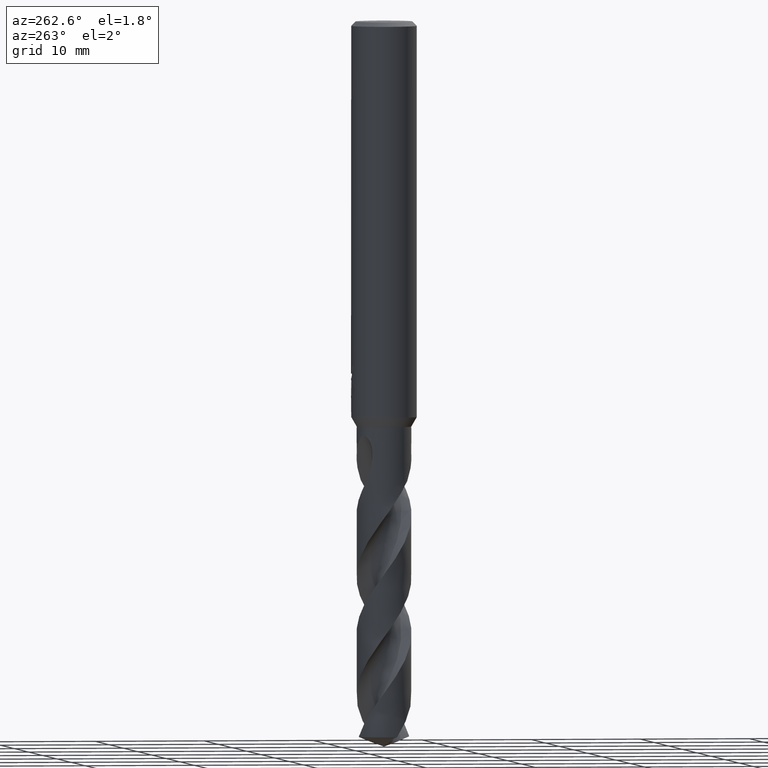
[diagram: clean part render]
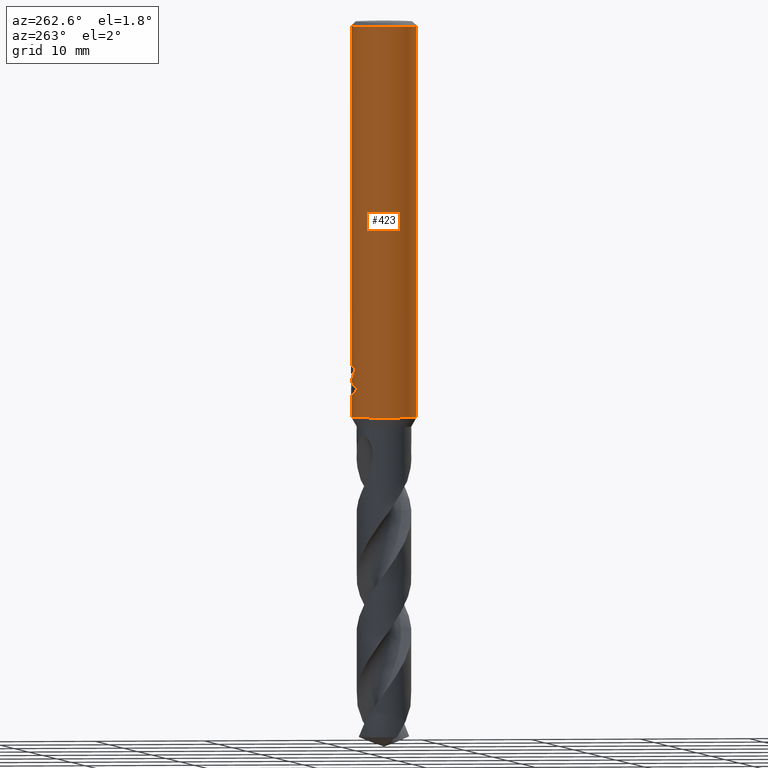
[diagram: same view with one face highlighted and labeled with its STEP entity id]
A machine part, auxiliary view. The second image highlights one B-rep face of the part: STEP entity #423.
In plain terms, the highlighted cylindrical surface (edge-blend (fillet) strip) has radius 3 mm, axis along (-0, -0, 1).
Its self-contained STEP definition (entity closure, byte-faithful):
#293=EDGE_CURVE('',#301,#479,#786,.T.);
#301=VERTEX_POINT('',#795);
#313=EDGE_CURVE('',#449,#327,#807,.T.);
#327=VERTEX_POINT('',#822);
#377=VERTEX_POINT('',#879);
#385=EDGE_CURVE('',#449,#401,#888,.T.);
#393=VERTEX_POINT('',#897);
#401=VERTEX_POINT('',#906);
#409=VERTEX_POINT('',#914);
#417=VERTEX_POINT('',#923);
#423=ADVANCED_FACE('',(#929),#930,.T.);
#449=VERTEX_POINT('',#958);
#463=EDGE_CURVE('',#377,#301,#974,.T.);
#479=VERTEX_POINT('',#992);
#483=EDGE_CURVE('',#703,#409,#996,.T.);
#539=EDGE_CURVE('',#479,#703,#1056,.T.);
#557=VERTEX_POINT('',#1075);
#575=EDGE_CURVE('',#417,#393,#1095,.T.);
#581=EDGE_CURVE('',#667,#557,#1103,.T.);
#609=EDGE_CURVE('',#401,#377,#1134,.T.);
#667=VERTEX_POINT('',#1197);
#691=EDGE_CURVE('',#557,#327,#1223,.T.);
#703=VERTEX_POINT('',#1235);
#707=EDGE_CURVE('',#409,#417,#1239,.T.);
#711=EDGE_CURVE('',#393,#667,#1243,.T.);
#786=B_SPLINE_CURVE_WITH_KNOTS('',3,(#1593,#1594,#1595,#1596,#1597,#1598,#1599,#1600,#1601,#1602,#1603,#1604,#1605,#1606,#1607,#1608,#1609,#1610,#1611,#1612,#1613,#1614,#1615,#1616,#1617,#1618,#1619),.UNSPECIFIED.,.F.,.F.,(4,2,3,2,2,2,2,2,2,2,2,2,4),(-0.54422824842136,-0.27211412421068,0.0,0.272114124210678,0.544228248421357,0.817906359646673,1.09158447087199,1.36255924571499,1.63353402055798,1.90530456554772,2.17707511053746,2.4488456555272,2.72061620051693),.UNSPECIFIED.);
#795=CARTESIAN_POINT('',(-1.20768269592175E-015,3.0,-32.0232688117743));
#807=CIRCLE('',#1668,3.0);
#822=CARTESIAN_POINT('',(0.0,3.0,-36.0));
#879=CARTESIAN_POINT('',(0.0,3.0,-0.399999999999999));
#888=LINE('',#2357,#2358);
#897=CARTESIAN_POINT('',(-3.67366600472444E-016,3.0,-32.7128911336578));
#906=CARTESIAN_POINT('',(3.67381906146713E-016,-3.0,-0.399999999999999));
#914=CARTESIAN_POINT('',(-1.0350734039088,2.81578107254819,-31.3171221986971));
#923=CARTESIAN_POINT('',(-2.06254272401587E-016,3.0,-32.5000801551881));
#929=FACE_OUTER_BOUND('',#2527,.T.);
#930=CYLINDRICAL_SURFACE('',#2528,3.0);
#958=CARTESIAN_POINT('',(3.67381906146713E-016,-3.0,-36.0));
#974=LINE('',#2694,#2695);
#992=CARTESIAN_POINT('',(-0.486378944383045,2.96031003823262,-31.6432837483006));
#996=CIRCLE('',#2723,3.0);
#1056=B_SPLINE_CURVE_WITH_KNOTS('',3,(#3000,#3001,#3002,#3003,#3004,#3005,#3006,#3007,#3008,#3009,#3010,#3011,#3012,#3013,#3014,#3015,#3016,#3017,#3018,#3019,#3020,#3021,#3022,#3023,#3024,#3025,#3026),.UNSPECIFIED.,.F.,.F.,(4,2,3,2,2,2,2,2,2,2,2,2,4),(-0.54422824842136,-0.27211412421068,0.0,0.272114124210678,0.544228248421357,0.817906359646673,1.09158447087199,1.36255924571499,1.63353402055798,1.90530456554772,2.17707511053746,2.4488456555272,2.72061620051693),.UNSPECIFIED.);
#1075=CARTESIAN_POINT('',(-2.46407913303377E-016,3.0,-34.0310253601033));
#1095=LINE('',#3098,#3099);
#1103=B_SPLINE_CURVE_WITH_KNOTS('',3,(#3713,#3714,#3715,#3716,#3717,#3718,#3719,#3720,#3721,#3722,#3723,#3724,#3725,#3726,#3727,#3728),.UNSPECIFIED.,.F.,.F.,(4,2,2,2,2,2,2,4),(5.66023402257373,6.29060333517104,6.60504483258975,6.91948633000846,7.23392782742717,7.54836932484587,7.86141901111221,8.17446869737855),.UNSPECIFIED.);
#1134=CIRCLE('',#3870,3.0);
#1197=CARTESIAN_POINT('',(-1.337052752443,2.68557069115386,-33.3720803908795));
#1223=LINE('',#4894,#4895);
#1235=CARTESIAN_POINT('',(-0.562333990228013,2.94682549253162,-31.3171221986971));
#1239=B_SPLINE_CURVE_WITH_KNOTS('',3,(#5023,#5024,#5025,#5026,#5027,#5028,#5029,#5030,#5031,#5032,#5033,#5034,#5035,#5036),.UNSPECIFIED.,.F.,.F.,(4,2,2,2,2,2,4),(3.16026050654945,3.61086409539206,4.06146768423468,4.51207127307729,4.95991823802074,5.40776520296419,5.86282890530594),.UNSPECIFIED.);
#1243=ELLIPSE('',#5043,3.34478529612858,3.0);
#1593=CARTESIAN_POINT('',(0.665621182276714,2.92522622060321,-30.8140957881762));
#1594=CARTESIAN_POINT('',(0.728850563417096,2.91083867849353,-30.877518087557));
#1595=CARTESIAN_POINT('',(0.783900459387161,2.89602337967411,-30.9578702196133));
#1596=CARTESIAN_POINT('',(0.857188692916628,2.87518328740958,-31.1345580124299));
#1597=CARTESIAN_POINT('',(0.875400981188567,2.86943777108584,-31.2309373045166));
#1598=CARTESIAN_POINT('',(0.875400981188567,2.86943777108584,-31.3216420125868));
#1599=CARTESIAN_POINT('',(0.875400981188567,2.86943777108584,-31.412346720657));
#1600=CARTESIAN_POINT('',(0.857188692916629,2.87518328740958,-31.5087260127437));
#1601=CARTESIAN_POINT('',(0.783900459387161,2.89602337967411,-31.6854138055602));
#1602=CARTESIAN_POINT('',(0.728850563417096,2.91083867849353,-31.7657659376165));
#1603=CARTESIAN_POINT('',(0.60202838769231,2.93969645569731,-31.8929750586276));
#1604=CARTESIAN_POINT('',(0.5214778595293,2.95568533572518,-31.9483797636259));
#1605=CARTESIAN_POINT('',(0.34429909105015,2.98152194310932,-32.0221641076746));
#1606=CARTESIAN_POINT('',(0.247628172090375,2.99115403786358,-32.0405166027747));
#1607=CARTESIAN_POINT('',(0.0663244946631877,3.00062654348629,-32.0405166027747));
#1608=CARTESIAN_POINT('',(-0.0299285908853379,3.00115720326599,-32.0224875186921));
#1609=CARTESIAN_POINT('',(-0.206881310600538,2.99416773126077,-31.949244373347));
#1610=CARTESIAN_POINT('',(-0.287593937381961,2.98687212067831,-31.8940404490632));
#1611=CARTESIAN_POINT('',(-0.415200117492864,2.97182576996222,-31.7666805419979));
#1612=CARTESIAN_POINT('',(-0.470604049431396,2.96309385107775,-31.6859121102136));
#1613=CARTESIAN_POINT('',(-0.544183869965539,2.95046729924835,-31.5086992019516));
#1614=CARTESIAN_POINT('',(-0.562348199187247,2.94682278104247,-31.41223219425));
#1615=CARTESIAN_POINT('',(-0.562348199187247,2.94682278104247,-31.2310518309235));
#1616=CARTESIAN_POINT('',(-0.54418386996554,2.95046729924835,-31.134584823222));
#1617=CARTESIAN_POINT('',(-0.4706040494314,2.96309385107775,-30.95737191496));
#1618=CARTESIAN_POINT('',(-0.415200117492863,2.97182576996222,-30.8766034831756));
#1619=CARTESIAN_POINT('',(-0.351303479704285,2.97935997575782,-30.812830162452));
#1668=AXIS2_PLACEMENT_3D('',#5213,#5214,#5215);
#2357=CARTESIAN_POINT('',(3.67381906146713E-016,-3.0,-18.2));
#2358=VECTOR('',#5332,1.0);
#2527=EDGE_LOOP('',(#5361,#5362,#5363,#5364,#5365,#5366,#5367,#5368,#5369,#5370,#5371,#5372));
#2528=AXIS2_PLACEMENT_3D('',#5373,#5374,#5375);
#2694=CARTESIAN_POINT('',(-3.67381906146713E-016,3.0,-18.2));
#2695=VECTOR('',#5424,1.0);
#2723=AXIS2_PLACEMENT_3D('',#5460,#5461,#5462);
#3000=CARTESIAN_POINT('',(0.665621182276714,2.92522622060321,-30.8140957881762));
#3001=CARTESIAN_POINT('',(0.728850563417096,2.91083867849353,-30.877518087557));
#3002=CARTESIAN_POINT('',(0.783900459387161,2.89602337967411,-30.9578702196133));
#3003=CARTESIAN_POINT('',(0.857188692916628,2.87518328740958,-31.1345580124299));
#3004=CARTESIAN_POINT('',(0.875400981188567,2.86943777108584,-31.2309373045166));
#3005=CARTESIAN_POINT('',(0.875400981188567,2.86943777108584,-31.3216420125868));
#3006=CARTESIAN_POINT('',(0.875400981188567,2.86943777108584,-31.412346720657));
#3007=CARTESIAN_POINT('',(0.857188692916629,2.87518328740958,-31.5087260127437));
#3008=CARTESIAN_POINT('',(0.783900459387161,2.89602337967411,-31.6854138055602));
#3009=CARTESIAN_POINT('',(0.728850563417096,2.91083867849353,-31.7657659376165));
#3010=CARTESIAN_POINT('',(0.60202838769231,2.93969645569731,-31.8929750586276));
#3011=CARTESIAN_POINT('',(0.5214778595293,2.95568533572518,-31.9483797636259));
#3012=CARTESIAN_POINT('',(0.34429909105015,2.98152194310932,-32.0221641076746));
#3013=CARTESIAN_POINT('',(0.247628172090375,2.99115403786358,-32.0405166027747));
#3014=CARTESIAN_POINT('',(0.0663244946631877,3.00062654348629,-32.0405166027747));
#3015=CARTESIAN_POINT('',(-0.0299285908853379,3.00115720326599,-32.0224875186921));
#3016=CARTESIAN_POINT('',(-0.206881310600538,2.99416773126077,-31.949244373347));
#3017=CARTESIAN_POINT('',(-0.287593937381961,2.98687212067831,-31.8940404490632));
#3018=CARTESIAN_POINT('',(-0.415200117492864,2.97182576996222,-31.7666805419979));
#3019=CARTESIAN_POINT('',(-0.470604049431396,2.96309385107775,-31.6859121102136));
#3020=CARTESIAN_POINT('',(-0.544183869965539,2.95046729924835,-31.5086992019516));
#3021=CARTESIAN_POINT('',(-0.562348199187247,2.94682278104247,-31.41223219425));
#3022=CARTESIAN_POINT('',(-0.562348199187247,2.94682278104247,-31.2310518309235));
#3023=CARTESIAN_POINT('',(-0.54418386996554,2.95046729924835,-31.134584823222));
#3024=CARTESIAN_POINT('',(-0.4706040494314,2.96309385107775,-30.95737191496));
#3025=CARTESIAN_POINT('',(-0.415200117492863,2.97182576996222,-30.8766034831756));
#3026=CARTESIAN_POINT('',(-0.351303479704285,2.97935997575782,-30.812830162452));
#3098=CARTESIAN_POINT('',(-3.67381906146713E-016,3.0,-18.2));
#3099=VECTOR('',#5565,1.0);
#3713=CARTESIAN_POINT('',(-1.53050642192579,2.58022287650581,-33.0319811255889));
#3714=CARTESIAN_POINT('',(-1.44691631248335,2.62980577312329,-33.2314887010961));
#3715=CARTESIAN_POINT('',(-1.32276760444366,2.69707077181617,-33.4113258593841));
#3716=CARTESIAN_POINT('',(-1.10973155101076,2.78826898930335,-33.6245951706909));
#3717=CARTESIAN_POINT('',(-1.02948996220254,2.81934349084513,-33.6916117853674));
#3718=CARTESIAN_POINT('',(-0.853932698223484,2.87738531454781,-33.8105216600777));
#3719=CARTESIAN_POINT('',(-0.758609991487907,2.90431263574779,-33.8624240602539));
#3720=CARTESIAN_POINT('',(-0.558469552260235,2.94934446690523,-33.9464055954533));
#3721=CARTESIAN_POINT('',(-0.453457041446381,2.96746268462387,-33.9785511641911));
#3722=CARTESIAN_POINT('',(-0.240810292537893,2.99223469602914,-34.0209924679526));
#3723=CARTESIAN_POINT('',(-0.133171317626829,2.99887501234033,-34.0312723335086));
#3724=CARTESIAN_POINT('',(0.0759830626177195,3.00085245803086,-34.0312723335086));
#3725=CARTESIAN_POINT('',(0.183273473896684,2.99629272230549,-34.0210815541729));
#3726=CARTESIAN_POINT('',(0.39543915272815,2.97573303917486,-33.9788816901513));
#3727=CARTESIAN_POINT('',(0.500318639064909,2.95974677710468,-33.9468871509919));
#3728=CARTESIAN_POINT('',(0.600330982089903,2.93932011049205,-33.9050368602192));
#3870=AXIS2_PLACEMENT_3D('',#5630,#5631,#5632);
#4894=CARTESIAN_POINT('',(-3.67381906146713E-016,3.0,-18.2));
#4895=VECTOR('',#5722,1.0);
#5023=CARTESIAN_POINT('',(-0.944028754947609,2.84759718180646,-30.87109591768));
#5024=CARTESIAN_POINT('',(-1.00479265183033,2.82745289805341,-31.0168616503562));
#5025=CARTESIAN_POINT('',(-1.03510901790186,2.81576798068631,-31.1761006644519));
#5026=CARTESIAN_POINT('',(-1.03510901790186,2.81576798068631,-31.4765030570137));
#5027=CARTESIAN_POINT('',(-1.00479265183033,2.82745289805341,-31.6357420711094));
#5028=CARTESIAN_POINT('',(-0.88326485806506,2.86774146555976,-31.9272735364618));
#5029=CARTESIAN_POINT('',(-0.792109261194285,2.89554580131596,-32.0596991578702));
#5030=CARTESIAN_POINT('',(-0.582867737485067,2.94478284423827,-32.2682275153448));
#5031=CARTESIAN_POINT('',(-0.450640829386874,2.96956027684007,-32.358826497016));
#5032=CARTESIAN_POINT('',(-0.159819744133953,2.99930375982357,-32.4794282329782));
#5033=CARTESIAN_POINT('',(-0.00114290335869099,3.00371168811663,-32.5093686300866));
#5034=CARTESIAN_POINT('',(0.299461057962613,2.98886806232847,-32.5093686300866));
#5035=CARTESIAN_POINT('',(0.459264276215476,2.96836791045541,-32.4785566268234));
#5036=CARTESIAN_POINT('',(0.604975334200916,2.93836771779988,-32.4175314011172));
#5043=AXIS2_PLACEMENT_3D('',#5728,#5729,#5730);
#5213=CARTESIAN_POINT('',(0.0,0.0,-36.0));
#5214=DIRECTION('',(0.0,0.0,-1.0));
#5215=DIRECTION('',(0.0,1.0,0.0));
#5332=DIRECTION('',(-0.0,-0.0,1.0));
#5361=ORIENTED_EDGE('',*,*,#463,.T.);
#5362=ORIENTED_EDGE('',*,*,#293,.T.);
#5363=ORIENTED_EDGE('',*,*,#539,.T.);
#5364=ORIENTED_EDGE('',*,*,#483,.T.);
#5365=ORIENTED_EDGE('',*,*,#707,.T.);
#5366=ORIENTED_EDGE('',*,*,#575,.T.);
#5367=ORIENTED_EDGE('',*,*,#711,.T.);
#5368=ORIENTED_EDGE('',*,*,#581,.T.);
#5369=ORIENTED_EDGE('',*,*,#691,.T.);
#5370=ORIENTED_EDGE('',*,*,#313,.F.);
#5371=ORIENTED_EDGE('',*,*,#385,.T.);
#5372=ORIENTED_EDGE('',*,*,#609,.T.);
#5373=CARTESIAN_POINT('',(0.0,0.0,-18.2));
#5374=DIRECTION('',(-0.0,-0.0,1.0));
#5375=DIRECTION('',(0.0,1.0,0.0));
#5424=DIRECTION('',(0.0,0.0,-1.0));
#5460=CARTESIAN_POINT('',(0.0,0.0,-31.3171221986971));
#5461=DIRECTION('',(0.0,-0.0,1.0));
#5462=DIRECTION('',(0.0,1.0,0.0));
#5565=DIRECTION('',(0.0,0.0,-1.0));
#5630=CARTESIAN_POINT('',(0.0,0.0,-0.399999999999999));
#5631=DIRECTION('',(0.0,0.0,-1.0));
#5632=DIRECTION('',(0.0,1.0,0.0));
#5722=DIRECTION('',(0.0,0.0,-1.0));
#5728=CARTESIAN_POINT('',(0.0,0.0,-32.7128911336578));
#5729=DIRECTION('',(-0.442195774284071,0.0,0.896918556617774));
#5730=DIRECTION('',(0.896918556617774,-0.0,0.442195774284071));